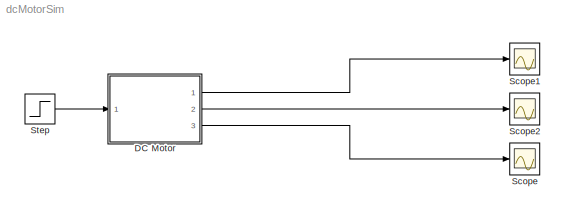
MODEL dcMotorSim
KIND model
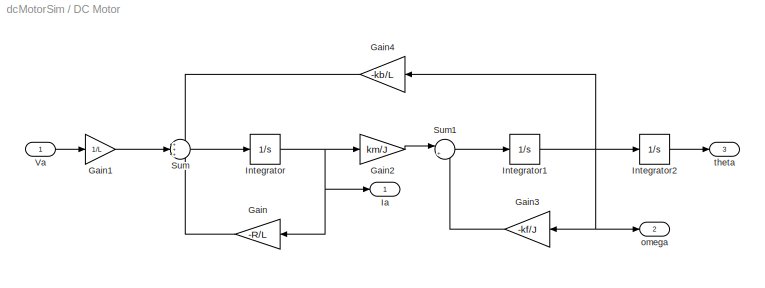
BLOCK [SubSystem] DC Motor
  Ports = [1, 3]
  RequestExecContextInheritance = off
  SID = 16
  Variant = off
BLOCK [Gain] DC Motor/Gain
  Gain = -R/L
  OutDataTypeStr = Inherit: Inherit via internal rule
  ParamDataTypeStr = Inherit: Inherit via internal rule
  SID = 5
  SaturateOnIntegerOverflow = off
BLOCK [Gain] DC Motor/Gain1
  Gain = 1/L
  OutDataTypeStr = Inherit: Inherit via internal rule
  ParamDataTypeStr = Inherit: Inherit via internal rule
  SID = 6
  SaturateOnIntegerOverflow = off
BLOCK [Gain] DC Motor/Gain2
  Gain = km/J
  OutDataTypeStr = Inherit: Inherit via internal rule
  ParamDataTypeStr = Inherit: Inherit via internal rule
  SID = 8
  SaturateOnIntegerOverflow = off
BLOCK [Gain] DC Motor/Gain3
  Gain = -kf/J
  OutDataTypeStr = Inherit: Inherit via internal rule
  ParamDataTypeStr = Inherit: Inherit via internal rule
  SID = 9
  SaturateOnIntegerOverflow = off
BLOCK [Gain] DC Motor/Gain4
  Gain = -kb/L
  OutDataTypeStr = Inherit: Inherit via internal rule
  ParamDataTypeStr = Inherit: Inherit via internal rule
  SID = 11
  SaturateOnIntegerOverflow = off
BLOCK [Outport] DC Motor/Ia
  IconDisplay = Port number
  SID = 18
BLOCK [Integrator] DC Motor/Integrator
  Ports = [1, 1]
  SID = 2
BLOCK [Integrator] DC Motor/Integrator1
  Ports = [1, 1]
  SID = 3
BLOCK [Integrator] DC Motor/Integrator2
  Ports = [1, 1]
  SID = 4
BLOCK [Sum] DC Motor/Sum
  IconShape = round
  InputSameDT = off
  Inputs = +++
  OutDataTypeStr = Inherit: Inherit via internal rule
  Ports = [3, 1]
  SID = 7
  SaturateOnIntegerOverflow = off
BLOCK [Sum] DC Motor/Sum1
  IconShape = round
  InputSameDT = off
  Inputs = |++
  OutDataTypeStr = Inherit: Inherit via internal rule
  Ports = [2, 1]
  SID = 10
  SaturateOnIntegerOverflow = off
BLOCK [Inport] DC Motor/Va
  IconDisplay = Port number
  SID = 17
BLOCK [Outport] DC Motor/omega
  IconDisplay = Port number
  Port = 2
  SID = 19
BLOCK [Outport] DC Motor/theta
  IconDisplay = Port number
  Port = 3
  SID = 20
BLOCK [Scope] Scope
  NumInputPorts = 1
  Ports = [1]
  SID = 13
  ScopeSpecificationString = Simulink.scopes.TimeScopeBlockCfg('CurrentConfiguration', extmgr.ConfigurationSet(extmgr.Configuration('Core','General UI',true),extmgr.Configuration('Core','Source UI',true),extmgr.Configuration('Sources','WiredSimulink',true),extmgr.Configuration('Visuals','Time Domain',true,'SerializedDisplays',{struct('MinYLimReal','-0.49436','MaxYLimReal','4.44928','YLabelReal','','MinYLimMag','0.00000','MaxY...<+1330ch>
BLOCK [Scope] Scope1
  NumInputPorts = 1
  Ports = [1]
  SID = 21
  ScopeSpecificationString = Simulink.scopes.TimeScopeBlockCfg('CurrentConfiguration', extmgr.ConfigurationSet(extmgr.Configuration('Core','General UI',true),extmgr.Configuration('Core','Source UI',true),extmgr.Configuration('Sources','WiredSimulink',true,'DataLoggingVariableName','ScopeData1'),extmgr.Configuration('Visuals','Time Domain',true,'SerializedDisplays',{struct('MinYLimReal','-0.11542','MaxYLimReal','1.03881','YLab...<+1396ch>
BLOCK [Scope] Scope2
  NumInputPorts = 1
  Ports = [1]
  SID = 15
  ScopeSpecificationString = Simulink.scopes.TimeScopeBlockCfg('CurrentConfiguration', extmgr.ConfigurationSet(extmgr.Configuration('Core','General UI',true),extmgr.Configuration('Core','Source UI',true),extmgr.Configuration('Sources','WiredSimulink',true,'DataLoggingVariableName','ScopeData2'),extmgr.Configuration('Visuals','Time Domain',true,'SerializedDisplays',{struct('MinYLimReal','-0.12389','MaxYLimReal','1.11498','YLab...<+1396ch>
BLOCK [Step] Step
  SID = 29
  SampleTime = 0
LINE DC Motor/Gain1:1 -> DC Motor/Sum:2
LINE DC Motor/Gain2:1 -> DC Motor/Sum1:1
LINE DC Motor/Gain3:1 -> DC Motor/Sum1:2
LINE DC Motor/Gain4:1 -> DC Motor/Sum:1
LINE DC Motor/Gain:1 -> DC Motor/Sum:3
NET DC Motor/Integrator1:1 -> DC Motor/Gain3:1, DC Motor/Gain4:1, DC Motor/Integrator2:1, DC Motor/omega:1
LINE DC Motor/Integrator2:1 -> DC Motor/theta:1
NET DC Motor/Integrator:1 -> DC Motor/Gain2:1, DC Motor/Gain:1, DC Motor/Ia:1
LINE DC Motor/Sum1:1 -> DC Motor/Integrator1:1
LINE DC Motor/Sum:1 -> DC Motor/Integrator:1
LINE DC Motor/Va:1 -> DC Motor/Gain1:1
LINE DC Motor:1 -> Scope1:1
LINE DC Motor:2 -> Scope2:1
LINE DC Motor:3 -> Scope:1
LINE Step:1 -> DC Motor:1
note: NET lines group one-source signal fan-out (src -> all destinations, sorted); 1:1 wires keep LINE
